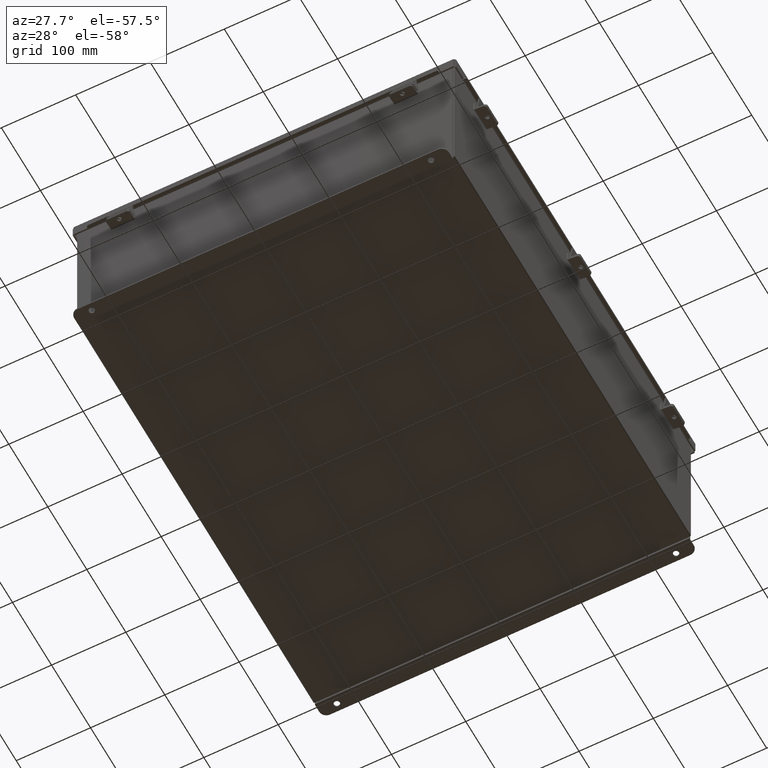
[diagram: clean part render]
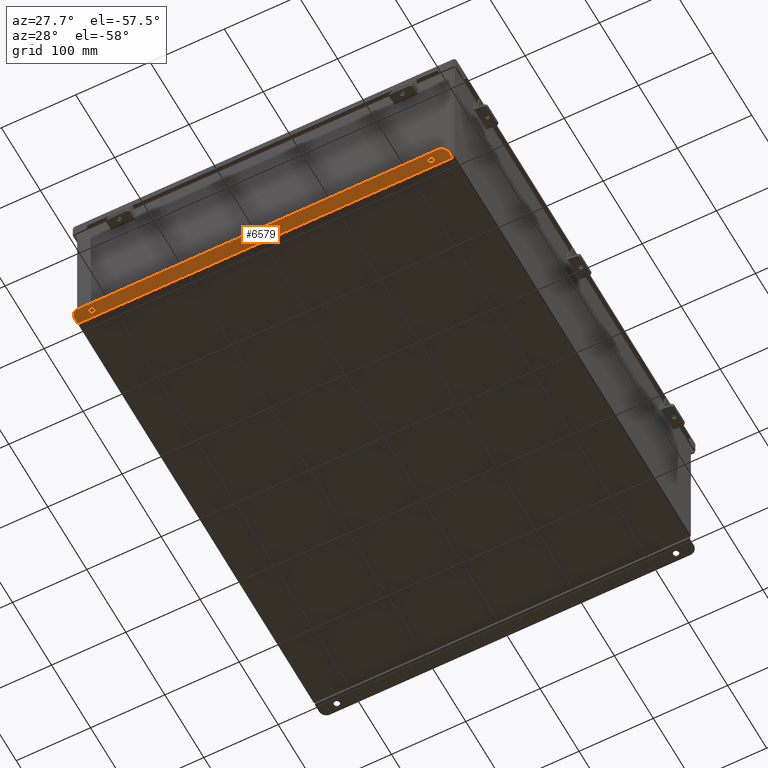
[diagram: same view with one face highlighted and labeled with its STEP entity id]
A machine part, auxiliary view. The second image highlights one B-rep face of the part: STEP entity #6579.
In plain terms, the highlighted planar face has unit normal (0, -0, 1).
Its self-contained STEP definition (entity closure, byte-faithful):
#49 = PLANE ( 'NONE',  #8556 ) ;
#62 = VERTEX_POINT ( 'NONE', #7070 ) ;
#271 = CIRCLE ( 'NONE', #5776, 0.3750000000000000600 ) ;
#350 = CARTESIAN_POINT ( 'NONE',  ( 8.987799999999989400, 0.2068000000000159700, -4.187000000000000300 ) ) ;
#395 = DIRECTION ( 'NONE',  ( 0.0000000000000000000, -3.362274453740631800E-015, -1.000000000000000000 ) ) ;
#427 = AXIS2_PLACEMENT_3D ( 'NONE', #3283, #8679, #4074 ) ;
#634 = EDGE_CURVE ( 'NONE', #2806, #4451, #7888, .T. ) ;
#649 = FACE_BOUND ( 'NONE', #1694, .T. ) ;
#760 = VERTEX_POINT ( 'NONE', #1204 ) ;
#787 = CARTESIAN_POINT ( 'NONE',  ( -2.035385365534024800E-024, -1.529834876451987200E-014, -4.187000000000000300 ) ) ;
#819 = DIRECTION ( 'NONE',  ( -4.919856193148104900E-031, -1.000000000000000000, 3.702694488566362300E-015 ) ) ;
#981 = VECTOR ( 'NONE', #9116, 39.37007874015748100 ) ;
#1099 = DIRECTION ( 'NONE',  ( 0.0000000000000000000, -3.362274453740631800E-015, -1.000000000000000000 ) ) ;
#1204 = CARTESIAN_POINT ( 'NONE',  ( -9.925299999999962700, 0.3628000000000008400, -4.186999999999996700 ) ) ;
#1249 = DIRECTION ( 'NONE',  ( -0.0000000000000000000, -3.702694488566362300E-015, -1.000000000000000000 ) ) ;
#1544 = VERTEX_POINT ( 'NONE', #9242 ) ;
#1694 = EDGE_LOOP ( 'NONE', ( #1761, #6936 ) ) ;
#1733 = CARTESIAN_POINT ( 'NONE',  ( 9.925300000000033800, 0.3628000000000161700, -4.187000000000001200 ) ) ;
#1761 = ORIENTED_EDGE ( 'NONE', *, *, #7668, .F. ) ;
#1900 = CARTESIAN_POINT ( 'NONE',  ( -9.925299999999978700, 0.01300000000000010700, -4.187000000000000300 ) ) ;
#1969 = CARTESIAN_POINT ( 'NONE',  ( 8.987799999999989400, 0.3628000000000161700, -4.187000000000001200 ) ) ;
#2050 = AXIS2_PLACEMENT_3D ( 'NONE', #1969, #7341, #2748 ) ;
#2225 = CARTESIAN_POINT ( 'NONE',  ( 8.987799999999989400, 0.5188000000000163600, -4.187000000000001200 ) ) ;
#2233 = DIRECTION ( 'NONE',  ( 1.000000000000000000, 2.752408485047608900E-017, -0.0000000000000000000 ) ) ;
#2326 = LINE ( 'NONE', #8347, #981 ) ;
#2533 = ORIENTED_EDGE ( 'NONE', *, *, #8766, .F. ) ;
#2574 = VERTEX_POINT ( 'NONE', #2225 ) ;
#2647 = VECTOR ( 'NONE', #9731, 39.37007874015748100 ) ;
#2720 = FACE_OUTER_BOUND ( 'NONE', #9304, .T. ) ;
#2748 = DIRECTION ( 'NONE',  ( 0.0000000000000000000, 1.000000000000000000, -3.502369222646487000E-015 ) ) ;
#2806 = VERTEX_POINT ( 'NONE', #9648 ) ;
#3064 = AXIS2_PLACEMENT_3D ( 'NONE', #5862, #1249, #6639 ) ;
#3283 = CARTESIAN_POINT ( 'NONE',  ( -8.987800000000007100, 0.3627999999999986800, -4.186999999999996700 ) ) ;
#3841 = CARTESIAN_POINT ( 'NONE',  ( 9.550299999999989400, 0.3628000000000161700, -4.186999999999996700 ) ) ;
#4074 = DIRECTION ( 'NONE',  ( 0.0000000000000000000, 1.000000000000000000, -3.502369222646487000E-015 ) ) ;
#4341 = CARTESIAN_POINT ( 'NONE',  ( -9.925299999999980500, -1.529834876451987200E-014, -4.187000000000000300 ) ) ;
#4391 = ORIENTED_EDGE ( 'NONE', *, *, #6252, .T. ) ;
#4439 = EDGE_LOOP ( 'NONE', ( #4975, #8330 ) ) ;
#4451 = VERTEX_POINT ( 'NONE', #9066 ) ;
#4529 = ORIENTED_EDGE ( 'NONE', *, *, #9390, .T. ) ;
#4610 = DIRECTION ( 'NONE',  ( 0.0000000000000000000, -1.000000000000000000, 4.370956789862820400E-015 ) ) ;
#4692 = LINE ( 'NONE', #6956, #8800 ) ;
#4871 = CIRCLE ( 'NONE', #3064, 0.3750000000000000600 ) ;
#4975 = ORIENTED_EDGE ( 'NONE', *, *, #634, .F. ) ;
#5026 = CARTESIAN_POINT ( 'NONE',  ( 8.987799999999989400, 0.3628000000000161700, -4.187000000000001200 ) ) ;
#5428 = DIRECTION ( 'NONE',  ( 0.0000000000000000000, 3.702694488566362300E-015, 1.000000000000000000 ) ) ;
#5714 = CARTESIAN_POINT ( 'NONE',  ( -8.987800000000007100, 0.3627999999999986800, -4.186999999999996700 ) ) ;
#5776 = AXIS2_PLACEMENT_3D ( 'NONE', #3841, #9222, #4610 ) ;
#5783 = DIRECTION ( 'NONE',  ( 0.0000000000000000000, 1.000000000000000000, -3.502369222646487000E-015 ) ) ;
#5862 = CARTESIAN_POINT ( 'NONE',  ( -9.550300000000007100, 0.3628000000000008400, -4.187000000000001200 ) ) ;
#6178 = VERTEX_POINT ( 'NONE', #1900 ) ;
#6232 = EDGE_CURVE ( 'NONE', #7189, #2574, #7149, .T. ) ;
#6252 = EDGE_CURVE ( 'NONE', #760, #7135, #4871, .T. ) ;
#6495 = DIRECTION ( 'NONE',  ( 0.0000000000000000000, 1.000000000000000000, -3.502369222646487000E-015 ) ) ;
#6572 = FACE_BOUND ( 'NONE', #4439, .T. ) ;
#6579 = ADVANCED_FACE ( 'NONE', ( #6572, #649, #2720 ), #49, .F. ) ;
#6639 = DIRECTION ( 'NONE',  ( 0.0000000000000000000, -1.000000000000000000, 4.370956789862820400E-015 ) ) ;
#6912 = EDGE_CURVE ( 'NONE', #62, #8039, #271, .T. ) ;
#6936 = ORIENTED_EDGE ( 'NONE', *, *, #6232, .F. ) ;
#6956 = CARTESIAN_POINT ( 'NONE',  ( -2.035385365534024800E-024, 0.7378000000000011200, -4.186999999999998500 ) ) ;
#7040 = EDGE_CURVE ( 'NONE', #4451, #2806, #7261, .T. ) ;
#7063 = ORIENTED_EDGE ( 'NONE', *, *, #7466, .T. ) ;
#7070 = CARTESIAN_POINT ( 'NONE',  ( 9.550299999999989400, 0.7378000000000163300, -4.187000000000002900 ) ) ;
#7135 = VERTEX_POINT ( 'NONE', #8010 ) ;
#7149 = CIRCLE ( 'NONE', #2050, 0.1560000000000001900 ) ;
#7189 = VERTEX_POINT ( 'NONE', #350 ) ;
#7261 = CIRCLE ( 'NONE', #427, 0.1560000000000001900 ) ;
#7341 = DIRECTION ( 'NONE',  ( 0.0000000000000000000, -3.362274453740631800E-015, -1.000000000000000000 ) ) ;
#7466 = EDGE_CURVE ( 'NONE', #8039, #1544, #2326, .T. ) ;
#7467 = LINE ( 'NONE', #7601, #9271 ) ;
#7601 = CARTESIAN_POINT ( 'NONE',  ( 9.925300000000016000, 0.01300000000001759100, -4.186999999999995800 ) ) ;
#7668 = EDGE_CURVE ( 'NONE', #2574, #7189, #8842, .T. ) ;
#7888 = CIRCLE ( 'NONE', #9829, 0.1560000000000001900 ) ;
#8010 = CARTESIAN_POINT ( 'NONE',  ( -9.550300000000007100, 0.7377999999999989000, -4.186999999999998500 ) ) ;
#8039 = VERTEX_POINT ( 'NONE', #1733 ) ;
#8330 = ORIENTED_EDGE ( 'NONE', *, *, #7040, .F. ) ;
#8347 = CARTESIAN_POINT ( 'NONE',  ( 9.925300000000016000, 2.185478394931410600E-015, -4.186999999999995800 ) ) ;
#8505 = AXIS2_PLACEMENT_3D ( 'NONE', #5026, #395, #5783 ) ;
#8536 = DIRECTION ( 'NONE',  ( 1.000000000000000000, 4.910036603141682400E-031, 0.0000000000000000000 ) ) ;
#8551 = LINE ( 'NONE', #4341, #2647 ) ;
#8556 = AXIS2_PLACEMENT_3D ( 'NONE', #787, #5428, #819 ) ;
#8610 = ORIENTED_EDGE ( 'NONE', *, *, #6912, .T. ) ;
#8679 = DIRECTION ( 'NONE',  ( 0.0000000000000000000, -3.362274453740631800E-015, -1.000000000000000000 ) ) ;
#8766 = EDGE_CURVE ( 'NONE', #6178, #1544, #7467, .T. ) ;
#8800 = VECTOR ( 'NONE', #8536, 39.37007874015748100 ) ;
#8842 = CIRCLE ( 'NONE', #8505, 0.1560000000000001900 ) ;
#8884 = EDGE_CURVE ( 'NONE', #7135, #62, #4692, .T. ) ;
#9066 = CARTESIAN_POINT ( 'NONE',  ( -8.987800000000007100, 0.2067999999999984900, -4.186999999999995800 ) ) ;
#9084 = ORIENTED_EDGE ( 'NONE', *, *, #8884, .T. ) ;
#9116 = DIRECTION ( 'NONE',  ( -4.919856193148104900E-031, -1.000000000000000000, 3.702694488566362300E-015 ) ) ;
#9222 = DIRECTION ( 'NONE',  ( -0.0000000000000000000, -3.702694488566362300E-015, -1.000000000000000000 ) ) ;
#9242 = CARTESIAN_POINT ( 'NONE',  ( 9.925300000000016000, 0.01300000000001759100, -4.186999999999995800 ) ) ;
#9271 = VECTOR ( 'NONE', #2233, 39.37007874015748100 ) ;
#9304 = EDGE_LOOP ( 'NONE', ( #4529, #4391, #9084, #8610, #7063, #2533 ) ) ;
#9390 = EDGE_CURVE ( 'NONE', #6178, #760, #8551, .T. ) ;
#9648 = CARTESIAN_POINT ( 'NONE',  ( -8.987800000000007100, 0.5187999999999988200, -4.186999999999996700 ) ) ;
#9731 = DIRECTION ( 'NONE',  ( 4.919856193148104900E-031, 1.000000000000000000, -3.702694488566362300E-015 ) ) ;
#9829 = AXIS2_PLACEMENT_3D ( 'NONE', #5714, #1099, #6495 ) ;